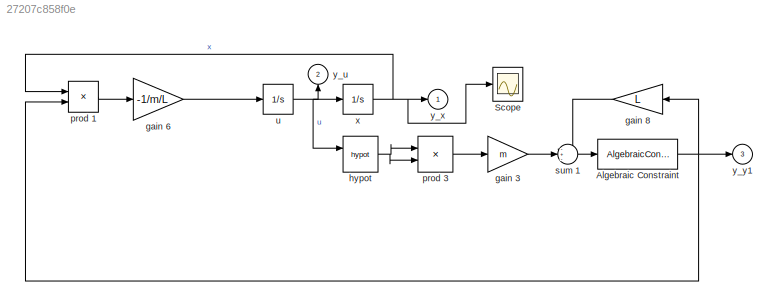
MODEL slx_27207c858f0e
KIND model
CONFIG AbsTol = auto
CONFIG EnableMultiTasking = off
CONFIG FixedStep = auto
CONFIG MaxStep = auto
CONFIG MinStep = auto
CONFIG RelTol = 1e-3
CONFIG SampleTimeConstraint = Unconstrained
CONFIG Solver = VariableStepAuto
CONFIG SolverName = VariableStepAuto
CONFIG StartTime = 0.0
CONFIG StopTime = 10.0
BLOCK [AlgebraicConstraint] Algebraic Constraint
  InitialGuess = -lambda0
  Solver = Trust region
BLOCK [Scope] Scope
  Floating = off
  NumInputPorts = 1
  Ports = [1]
  ScopeSpecificationString = Simulink.scopes.TimeScopeBlockCfg('CurrentConfiguration', extmgr.ConfigurationSet(extmgr.Configuration('Core','General UI',true),extmgr.Configuration('Core','Source UI',true),extmgr.Configuration('Sources','WiredSimulink',true),extmgr.Configuration('Visuals','Time Domain',true,'SerializedDisplays',{struct('MinYLimReal','-1.00000','MaxYLimReal','1.00000','YLabelReal','','MinYLimMag','0.00000','MaxY...<+1350ch>
BLOCK [Gain] gain 3
  Gain = m
BLOCK [Gain] gain 6
  Gain = -1/m/L
BLOCK [Gain] gain 8
  Gain = L
BLOCK [Math] hypot
  Operator = hypot
  Ports = [2, 1]
  SignedPower = on
BLOCK [Product] prod 1
  Ports = [2, 1]
BLOCK [Product] prod 3
  Ports = [2, 1]
BLOCK [Sum] sum 1
  Inputs = -+-
  Ports = [3, 1]
BLOCK [Integrator] u
  InitialCondition = u0
  Ports = [1, 1]
BLOCK [Integrator] x
  InitialCondition = x0
  Ports = [1, 1]
BLOCK [Outport] y_u
  NameLocation = left
  Port = 2
  VectorParamsAs1DForOutWhenUnconnected = off
BLOCK [Outport] y_x
  NameLocation = top
  VectorParamsAs1DForOutWhenUnconnected = off
BLOCK [Outport] y_y1
  Port = 3
  VectorParamsAs1DForOutWhenUnconnected = off
NET Algebraic Constraint:1 -> gain 8:1, prod 1:2, y_y1:1
LINE gain 3:1 -> sum 1:2
LINE gain 6:1 -> u:1
LINE gain 8:1 -> sum 1:1
NET hypot:1 -> prod 3:1, prod 3:2
LINE prod 1:1 -> gain 6:1
LINE prod 3:1 -> gain 3:1
LINE sum 1:1 -> Algebraic Constraint:1
NET u:1 -> hypot:1, x:1, y_u:1
NET x:1 -> Scope:1, prod 1:1, y_x:1
note: NET lines group one-source signal fan-out (src -> all destinations, sorted); 1:1 wires keep LINE
